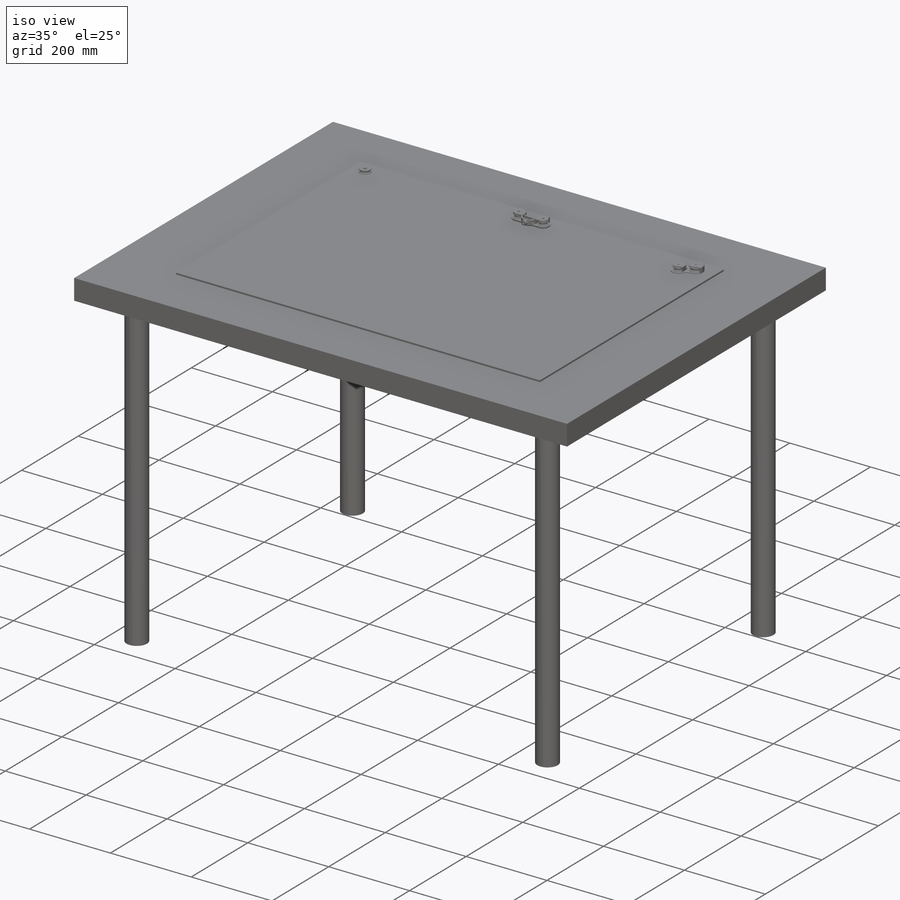
[diagram: iso view]
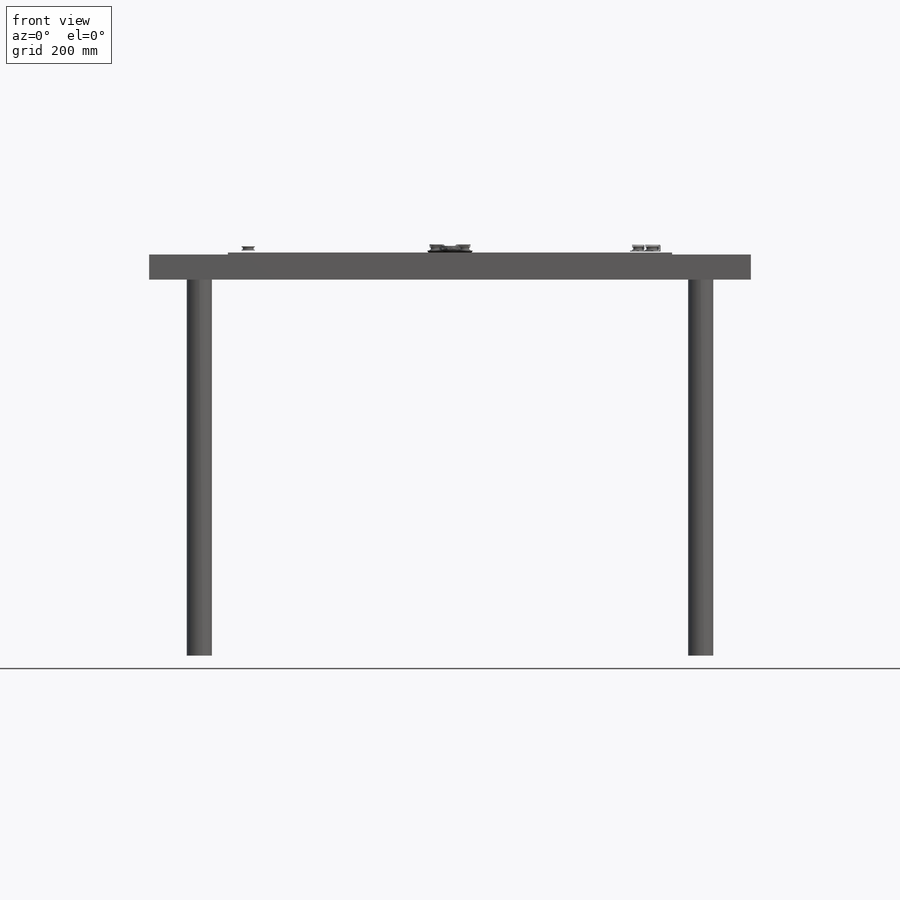
[diagram: front view]
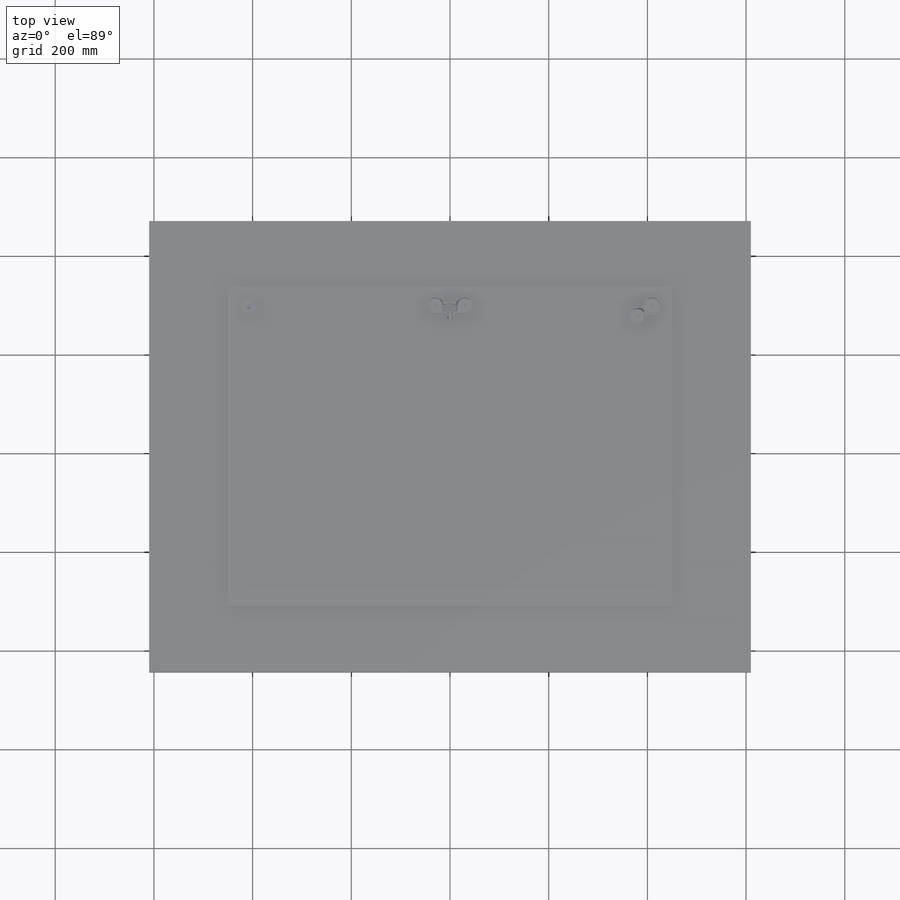
[diagram: top view]
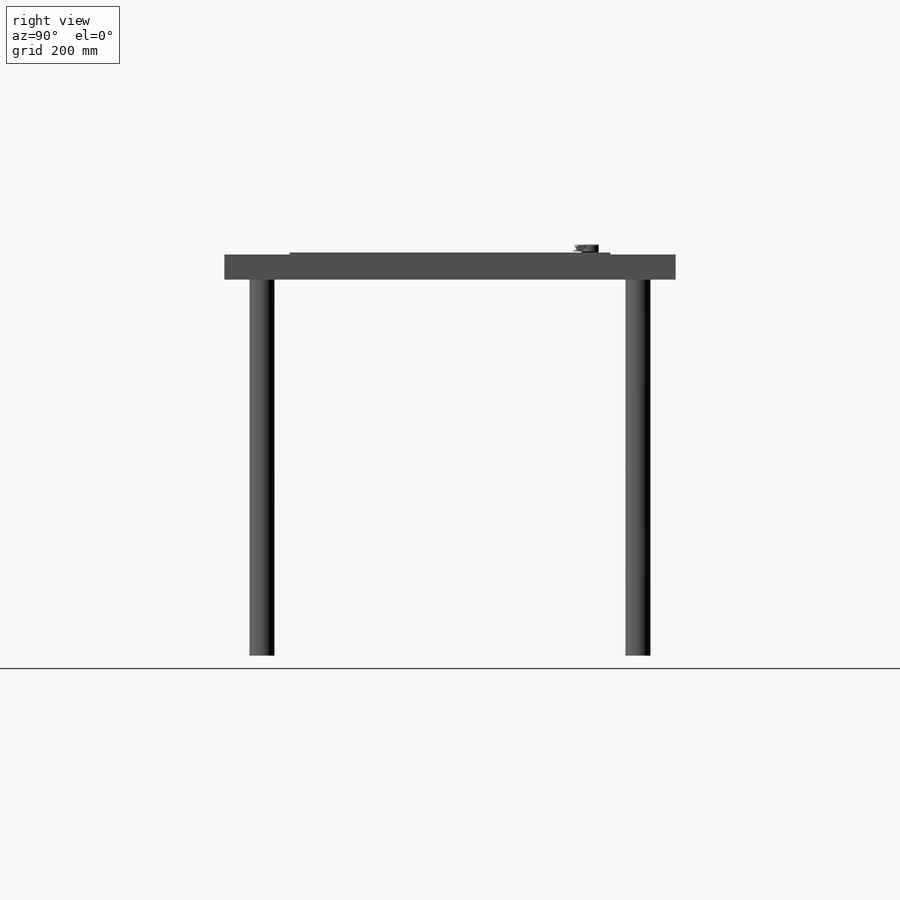
[diagram: right view]
SOLIDWORKS PART (.sldprt)
format: sldprt  version: not decoded by parser v0  size: 5,537,792 bytes
history: native  units: mm
features: sketch x51, fillet x40, extrude x27, chamfer x24, cut_extrude x20, plane x7, delete_body x2, material x1, cut_revolve x1, mirror x1 (+19 scaffold rows collapsed; 3 parser-record rows omitted)
feature tree (196):
  scaffold x19  (default folders/planes/origin — collapsed)
  material  "Material <not specified>"
  sketch  "Sketch1"  dims[D1=1219.2mm D2=914.4mm]
  extrude  "Extrude1"  Depth=50.8mm
  sketch  "Sketch2"  dims[D1=50.8mm D2=101.6mm]
  extrude  "Extrude2"  Depth=762mm
  sketch  "Sketch3"  dims[D1=900.0mm D2=650.0mm]
  extrude  "Extrude3"  Depth=4mm
  sketch  "Sketch4"  dims[c1.D2=22.0mm c1.D4=18.0mm c1.D3=60.0mm c2.D4=10.0mm c2.D5=15.0mm c2.D6=~22.36068mm c3.D6=~41.810315deg c3.D1=30.0mm]
  plane  "Pulley Plane"  Offset=4mm
  sketch  "Sketch6"  dims[D1=2.5mm D2=2.5mm D3=2.5mm D4=2.5mm D5=2.5mm D6=2.5mm D7=2.5mm D8=2.5mm D9=2.5mm D10=2.5mm]
  extrude  "Extrude4"  Depth=2mm
  sketch  "Sketch8"
  extrude  "Extrude5"  Depth=4.5mm
  sketch  "Sketch9"
  extrude  "Extrude6"  Depth=2mm
  parser-record x3  (decoder bookkeeping rows leaked as tree rows — omitted from the tree; the rows remain in map.json)
  chamfer  "Chamfer1"  Distance=1.5mm Angle=30deg
  chamfer  "Chamfer2"  Distance=1.5mm Angle=30deg
  chamfer  "Chamfer3"  Distance=1.5mm Angle=30deg
  chamfer  "Chamfer4"  Distance=1.5mm Angle=30deg
  chamfer  "Chamfer5"  Distance=1.5mm Angle=30deg
  chamfer  "Chamfer6"  Distance=1.5mm Angle=30deg
  chamfer  "Chamfer7"  Distance=1.5mm Angle=30deg
  chamfer  "Chamfer8"  Distance=1.5mm Angle=30deg
  chamfer  "Chamfer9"  Distance=1.5mm Angle=30deg
  chamfer  "Chamfer10"  Distance=1.5mm Angle=30deg
  chamfer  "Chamfer11"  Distance=1.5mm Angle=30deg
  chamfer  "Chamfer12"  Distance=1.5mm Angle=30deg
  chamfer  "Chamfer13"  Distance=1.5mm Angle=30deg
  chamfer  "Chamfer14"  Distance=1.5mm Angle=30deg
  chamfer  "Chamfer15"  Distance=1.5mm Angle=30deg
  chamfer  "Chamfer16"  Distance=1.5mm Angle=30deg
  chamfer  "Chamfer17"  Distance=1.5mm Angle=30deg
  chamfer  "Chamfer18"  Distance=1.5mm Angle=30deg
  chamfer  "Chamfer19"  Distance=1.5mm Angle=30deg
  chamfer  "Chamfer20"  Distance=1.5mm Angle=30deg
  sketch  "Sketch10"  dims[D1=12.446mm]
  cut_extrude  "Extrude7"  [1 undecoded]
  sketch  "Sketch11"  dims[D1=14.732mm]
  cut_extrude  "Extrude8"  Depth=1.016mm
  sketch  "Sketch12"  dims[D1=7.9248mm D2=6.731mm D3=0.7874mm D4=0.74mm]
  cut_extrude  "Extrude9"  [1 undecoded]
  fillet  "Fillet1"  Radius=0.2mm
  delete_body  "Body-Delete1"
  plane  "Plane2"
  sketch  "Sketch13"  dims[c1.D1=5.0mm c1.D2=~4.541217mm c2.D2=45.0deg c2.D1=10.0mm c2.D3=5.0mm]
  cut_revolve  "Cut-Revolve1"  Angle=360deg
  sketch  "Sketch16"  dims[c1.D1=~38.483251mm c1.D2=40.0mm c2.D1=4.0mm]
  extrude  "Extrude10"  [1 undecoded]
  fillet  "Fillet3"  Radius=3mm
  sketch  "Sketch17"  dims[D2=1.5mm D3=8.0mm D1=0.35mm]
  extrude  "Extrude11"  Depth=1mm
  sketch  "Sketch26"  dims[D1=0.0mm]
  extrude  "Extrude19"  [1 undecoded]
  sketch  "Sketch27"
  cut_extrude  "Extrude20"  [1 undecoded]
  fillet  "Fillet15"  Radius=3mm
  fillet  "Fillet17"  Radius=5mm
  sketch  "Sketch28"
  extrude  "Extrude21"  [1 undecoded]
  plane  "Plane6"
  sketch  "Sketch29"  dims[D1=3.0mm]
  cut_extrude  "Extrude22"  [1 undecoded]
  sketch  "Sketch30"
  cut_extrude  "Extrude23"  [1 undecoded]
  fillet  "Fillet19"  Radius=2mm
  fillet  "Fillet20"  Radius=0.5mm
  sketch  "Sketch31"  dims[D1=5.0mm]
  cut_extrude  "Extrude24"  [1 undecoded]
  fillet  "Fillet21"  Radius=1mm
  sketch  "Sketch33"  dims[D1=6.35mm]
  extrude  "Extrude26"  Depth=12mm
  fillet  "Fillet22"  Radius=1mm
  sketch  "Sketch34"  dims[D1=3.81mm]
  cut_extrude  "Extrude27"  [1 undecoded]
  plane  "Plane7"
  sketch  "Sketch35"
  extrude  "Extrude28"  Depth=3mm
  fillet  "Fillet23"  Radius=0.5mm
  sketch  "Sketch36"
  extrude  "Extrude29"  Depth=3mm
  fillet  "Fillet18"  Radius=2mm
  fillet  "Fillet24"  Radius=2mm
  fillet  "Fillet25"  Radius=1mm
  fillet  "Fillet26"  Radius=3mm
  fillet  "Fillet28"  Radius=0.5mm
  fillet  "Fillet29"  Radius=0.5mm
  fillet  "Fillet30"  Radius=0.5mm
  fillet  "Fillet31"  Radius=0.5mm
  sketch  "Sketch37"  dims[D1=5.08mm]
  cut_extrude  "Extrude30"  [1 undecoded]
  chamfer  "Chamfer22"  Distance=0.5mm Angle=30deg
  fillet  "Fillet32"  Radius=5mm
  fillet  "Fillet42"  Radius=0.5mm
  sketch  "Sketch38"  dims[c1.D3=18.0mm c1.D1=4.0mm c1.D2=4.0mm c2.D1=4.0mm c2.D2=4.0mm]
  extrude  "Extrude31"  [1 undecoded]
  sketch  "Sketch43"  dims[D3=1.5mm D4=1.0mm D1=0.35mm D2=0.35mm]
  extrude  "Extrude32"  Depth=1mm
  sketch  "Sketch44"
  extrude  "Extrude33"  Depth=2.5mm
  fillet  "Fillet33"  Radius=5mm
  fillet  "Fillet34"  Radius=2mm
  fillet  "Fillet35"  Radius=2mm
  fillet  "Fillet37"  Radius=2mm
  fillet  "Fillet39"  Radius=0.5mm
  fillet  "Fillet40"  Radius=0.5mm
  fillet  "Fillet41"  Radius=0.5mm
  fillet  "Fillet43"  Radius=0.5mm
  fillet  "Fillet44"  Radius=0.5mm
  fillet  "Fillet45"  Radius=0.5mm
  sketch  "Sketch45"  dims[D1=5.08mm]
  cut_extrude  "Extrude34"  [1 undecoded]
  chamfer  "Chamfer23"  Distance=0.5mm Angle=30deg
  sketch  "Sketch46"  dims[D1=3.0mm]
  extrude  "Extrude35"  Depth=2mm
  chamfer  "Chamfer24"  Distance=2mm Angle=30deg
  sketch  "Sketch49"
  sketch  "Sketch47"  dims[D1=1.5mm]
  cut_extrude  "Extrude36"  Depth=36
  fillet  "Fillet46"  Radius=0.2mm
  sketch  "Sketch50"  dims[D1=4.0mm]
  extrude  "Extrude37"  [1 undecoded]
  sketch  "Sketch51"  dims[D2=1.5mm D1=0.5mm]
  extrude  "Extrude38"  Depth=1mm
  sketch  "Sketch52"  dims[D1=10.668mm]
  extrude  "Extrude39"  Depth=4mm
  sketch  "Sketch53"
  cut_extrude  "Extrude40"  [1 undecoded]
  sketch  "Sketch54"  dims[c1.D1=~16.70676mm c1.D2=2.2mm c2.D1=120.0deg c2.D2=~8.35338mm c2.D3=14.8082mm]
  cut_extrude  "Extrude41"  [1 undecoded]
  sketch  "Sketch55"  dims[D1=5.334mm]
  cut_extrude  "Extrude42"  Depth=2.54mm
  sketch  "Sketch56"  dims[D1=3.0mm]
  extrude  "Extrude43"  Depth=2mm
  chamfer  "Chamfer25"  Distance=2mm Angle=30deg
  sketch  "Sketch58"
  sketch  "Sketch57"  dims[D1=1.5mm]
  cut_extrude  "Extrude44"  [1 undecoded]
  delete_body  "CrvPattern5"
  fillet  "Fillet47"  Radius=0.2mm
  fillet  "Fillet48"  Radius=0.5mm
  fillet  "Fillet49"  Radius=0.5mm
  plane  "Plane3"
  mirror  "Mirror3"
  sketch  "Sketch59"  dims[D1=6.35mm]
  extrude  "Extrude45"  [1 undecoded]
  sketch  "Sketch60"  dims[D3=20.32mm D1=50.0mm D2=50.0mm]
  extrude  "Extrude46"  [1 undecoded]
  plane  "Plane8"
  plane  "Plane9"
  sketch  "Sketch62"  dims[D3=3.0mm D1=6.0mm D2=4.0mm]
  cut_extrude  "Extrude47"  Depth=4mm
  sketch  "Sketch63"  dims[D1=0.0mm D2=0.0mm]
  cut_extrude  "Extrude49"  Depth=4mm
  sketch  "Sketch64"
  extrude  "Extrude50"  Depth=10mm
  fillet  "Fillet50"  Radius=6mm
  sketch  "Sketch65"  dims[D1=10.16mm]
  cut_extrude  "Extrude51"  [1 undecoded]
  fillet  "Fillet51"  Radius=3mm
  fillet  "Fillet52"  Radius=3mm
  fillet  "Fillet53"  Radius=1mm
  sketch  "Sketch66"  dims[D2=3.0mm D1=1.0mm]
  cut_extrude  "Extrude54"  Depth=3mm
  sketch  "Sketch67"  dims[D1=2.0mm D2=2.0mm]
  extrude  "Extrude55"  Depth=13mm
  sketch  "Sketch68"  dims[D1=6.604mm D2=2.5mm]
  cut_extrude  "Extrude56"  [1 undecoded]
  fillet  "Fillet54"  Radius=3mm
  sketch  "Sketch69"  dims[D1=6.35mm]
  extrude  "Extrude57"  Depth=6.35mm
  fillet  "Fillet55"  Radius=0.5mm
  sketch  "Sketch70"  dims[D1=9.525mm]
  extrude  "Extrude58"  Depth=2mm
  fillet  "Fillet56"  Radius=2mm
decode coverage: 130 of 166 modeling features carry decoded parameters
note: ~ marks probable driven/reference dimensions
note: 21 parameter values undecoded
summary: no parameter record found for 21 features
note: suppression state not decoded; provenance and decode notes live in map.json
